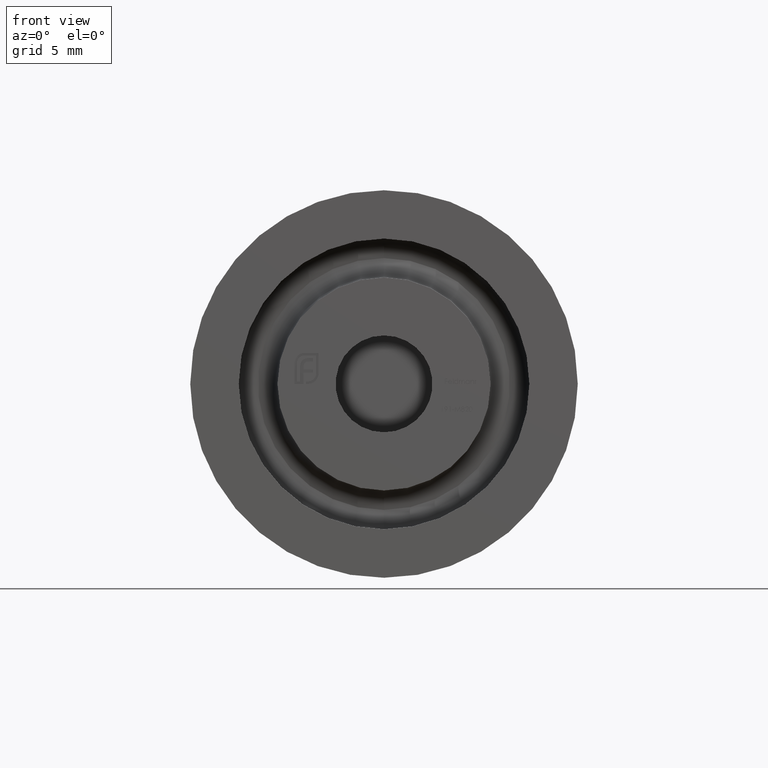
[diagram: clean part render]
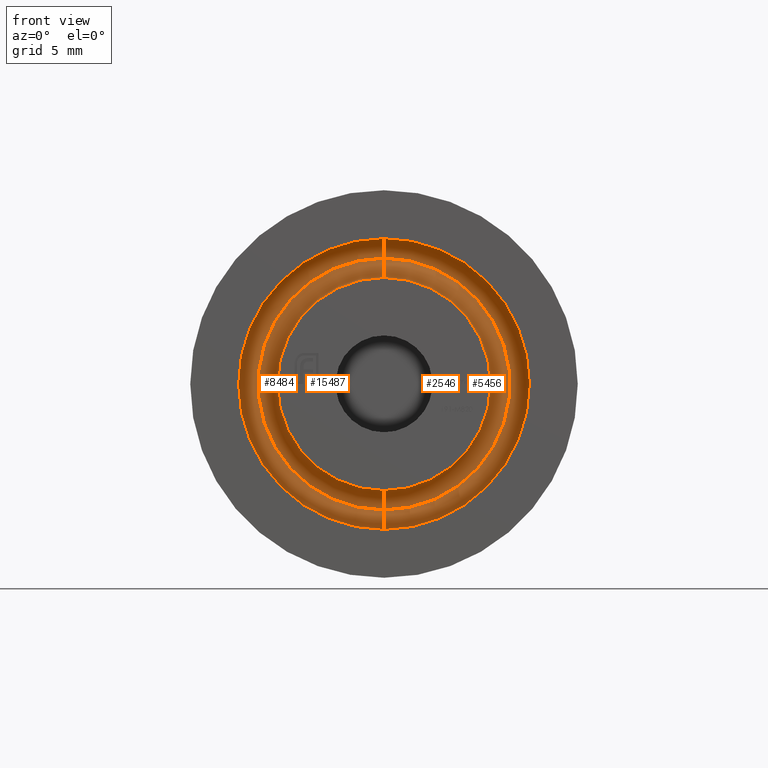
[diagram: same view with one multi-face feature highlighted, each face labeled with its STEP entity id]
A machine part, front view. The highlighted faces form ONE feature: a constant-radius fillet chain: 4 tangent blend faces with common blend radius 1 mm. The faces share edges in the B-rep.
Their STEP definitions:
[1] entity #2546 (Torus):
#225 = CIRCLE ( 'NONE', #734, 6.500000000000000000 ) ;
#734 = AXIS2_PLACEMENT_3D ( 'NONE', #1983, #4494, #3205 ) ;
#1076 = EDGE_CURVE ( 'NONE', #1266, #6040, #6778, .T. ) ;
#1099 = VERTEX_POINT ( 'NONE', #7923 ) ;
#1266 = VERTEX_POINT ( 'NONE', #14489 ) ;
#1440 = EDGE_CURVE ( 'NONE', #10461, #1099, #225, .T. ) ;
#1983 = CARTESIAN_POINT ( 'NONE',  ( 0.000000000000000000, 3.000000000000000000, 0.000000000000000000 ) ) ;
#2076 = CARTESIAN_POINT ( 'NONE',  ( 7.960204194457795477E-16, 2.000000000000001776, 6.500000000000000000 ) ) ;
#2546 = ADVANCED_FACE ( 'NONE', ( #9388 ), #4692, .F. ) ;
#3205 = DIRECTION ( 'NONE',  ( 0.000000000000000000, 0.000000000000000000, -1.000000000000000000 ) ) ;
#3864 = CARTESIAN_POINT ( 'NONE',  ( 0.000000000000000000, 2.000000000000001776, -6.500000000000000000 ) ) ;
#4164 = AXIS2_PLACEMENT_3D ( 'NONE', #8294, #8396, #12038 ) ;
#4243 = AXIS2_PLACEMENT_3D ( 'NONE', #15103, #11434, #8974 ) ;
#4494 = DIRECTION ( 'NONE',  ( -0.000000000000000000, 1.000000000000000000, -0.000000000000000000 ) ) ;
#4692 = TOROIDAL_SURFACE ( 'NONE', #4164, 6.500000000000000000, 1.000000000000000000 ) ;
#5455 = ORIENTED_EDGE ( 'NONE', *, *, #1440, .F. ) ;
#6040 = VERTEX_POINT ( 'NONE', #12468 ) ;
#6251 = CARTESIAN_POINT ( 'NONE',  ( 7.960204194457795477E-16, 3.000000000000000888, 6.500000000000000000 ) ) ;
#6295 = AXIS2_PLACEMENT_3D ( 'NONE', #2076, #11884, #9303 ) ;
#6358 = EDGE_CURVE ( 'NONE', #6040, #10461, #9509, .T. ) ;
#6778 = CIRCLE ( 'NONE', #4243, 5.500000000000000000 ) ;
#7175 = AXIS2_PLACEMENT_3D ( 'NONE', #3864, #9855, #8530 ) ;
#7923 = CARTESIAN_POINT ( 'NONE',  ( 0.000000000000000000, 3.000000000000000888, -6.500000000000000000 ) ) ;
#8294 = CARTESIAN_POINT ( 'NONE',  ( 0.000000000000000000, 2.000000000000001776, 0.000000000000000000 ) ) ;
#8396 = DIRECTION ( 'NONE',  ( 0.000000000000000000, -1.000000000000000000, 0.000000000000000000 ) ) ;
#8530 = DIRECTION ( 'NONE',  ( 0.000000000000000000, 0.000000000000000000, 1.000000000000000000 ) ) ;
#8974 = DIRECTION ( 'NONE',  ( 0.000000000000000000, 0.000000000000000000, -1.000000000000000000 ) ) ;
#9303 = DIRECTION ( 'NONE',  ( -1.224646799147353454E-16, 0.000000000000000000, -1.000000000000000000 ) ) ;
#9388 = FACE_OUTER_BOUND ( 'NONE', #10987, .T. ) ;
#9509 = CIRCLE ( 'NONE', #6295, 1.000000000000000000 ) ;
#9855 = DIRECTION ( 'NONE',  ( -1.000000000000000000, -0.000000000000000000, -0.000000000000000000 ) ) ;
#10461 = VERTEX_POINT ( 'NONE', #6251 ) ;
#10538 = ORIENTED_EDGE ( 'NONE', *, *, #13431, .T. ) ;
#10987 = EDGE_LOOP ( 'NONE', ( #11984, #14138, #10538, #5455 ) ) ;
#11434 = DIRECTION ( 'NONE',  ( 0.000000000000000000, -1.000000000000000000, 0.000000000000000000 ) ) ;
#11884 = DIRECTION ( 'NONE',  ( 1.000000000000000000, 0.000000000000000000, -1.224646799147353207E-16 ) ) ;
#11984 = ORIENTED_EDGE ( 'NONE', *, *, #6358, .F. ) ;
#12038 = DIRECTION ( 'NONE',  ( 0.000000000000000000, 0.000000000000000000, -1.000000000000000000 ) ) ;
#12220 = CIRCLE ( 'NONE', #7175, 1.000000000000000000 ) ;
#12468 = CARTESIAN_POINT ( 'NONE',  ( 0.000000000000000000, 2.000000000000001776, 5.500000000000000000 ) ) ;
#13431 = EDGE_CURVE ( 'NONE', #1266, #1099, #12220, .T. ) ;
#14138 = ORIENTED_EDGE ( 'NONE', *, *, #1076, .F. ) ;
#14489 = CARTESIAN_POINT ( 'NONE',  ( 6.735557395310442023E-16, 2.000000000000001776, -5.500000000000000000 ) ) ;
#15103 = CARTESIAN_POINT ( 'NONE',  ( 0.000000000000000000, 2.000000000000001776, 0.000000000000000000 ) ) ;
[2] entity #15487 (Torus):
#13 = DIRECTION ( 'NONE',  ( 0.000000000000000000, 0.000000000000000000, -1.000000000000000000 ) ) ;
#465 = DIRECTION ( 'NONE',  ( 0.000000000000000000, 0.000000000000000000, -1.000000000000000000 ) ) ;
#1099 = VERTEX_POINT ( 'NONE', #7923 ) ;
#1266 = VERTEX_POINT ( 'NONE', #14489 ) ;
#1694 = AXIS2_PLACEMENT_3D ( 'NONE', #5315, #1703, #8870 ) ;
#1703 = DIRECTION ( 'NONE',  ( 0.000000000000000000, -1.000000000000000000, 0.000000000000000000 ) ) ;
#2076 = CARTESIAN_POINT ( 'NONE',  ( 7.960204194457795477E-16, 2.000000000000001776, 6.500000000000000000 ) ) ;
#2120 = ORIENTED_EDGE ( 'NONE', *, *, #3357, .F. ) ;
#2386 = CARTESIAN_POINT ( 'NONE',  ( 0.000000000000000000, 2.000000000000001776, 0.000000000000000000 ) ) ;
#3014 = ORIENTED_EDGE ( 'NONE', *, *, #13431, .F. ) ;
#3357 = EDGE_CURVE ( 'NONE', #6040, #1266, #3764, .T. ) ;
#3587 = DIRECTION ( 'NONE',  ( 0.000000000000000000, -1.000000000000000000, 0.000000000000000000 ) ) ;
#3764 = CIRCLE ( 'NONE', #11476, 5.500000000000000000 ) ;
#3864 = CARTESIAN_POINT ( 'NONE',  ( 0.000000000000000000, 2.000000000000001776, -6.500000000000000000 ) ) ;
#5315 = CARTESIAN_POINT ( 'NONE',  ( 0.000000000000000000, 2.000000000000001776, 0.000000000000000000 ) ) ;
#5553 = AXIS2_PLACEMENT_3D ( 'NONE', #9984, #7655, #465 ) ;
#5964 = TOROIDAL_SURFACE ( 'NONE', #1694, 6.500000000000000000, 1.000000000000000000 ) ;
#6040 = VERTEX_POINT ( 'NONE', #12468 ) ;
#6251 = CARTESIAN_POINT ( 'NONE',  ( 7.960204194457795477E-16, 3.000000000000000888, 6.500000000000000000 ) ) ;
#6295 = AXIS2_PLACEMENT_3D ( 'NONE', #2076, #11884, #9303 ) ;
#6358 = EDGE_CURVE ( 'NONE', #6040, #10461, #9509, .T. ) ;
#6724 = ORIENTED_EDGE ( 'NONE', *, *, #9340, .F. ) ;
#7070 = ORIENTED_EDGE ( 'NONE', *, *, #6358, .T. ) ;
#7175 = AXIS2_PLACEMENT_3D ( 'NONE', #3864, #9855, #8530 ) ;
#7655 = DIRECTION ( 'NONE',  ( -0.000000000000000000, 1.000000000000000000, -0.000000000000000000 ) ) ;
#7923 = CARTESIAN_POINT ( 'NONE',  ( 0.000000000000000000, 3.000000000000000888, -6.500000000000000000 ) ) ;
#7962 = CIRCLE ( 'NONE', #5553, 6.500000000000000000 ) ;
#8530 = DIRECTION ( 'NONE',  ( 0.000000000000000000, 0.000000000000000000, 1.000000000000000000 ) ) ;
#8870 = DIRECTION ( 'NONE',  ( 0.000000000000000000, 0.000000000000000000, -1.000000000000000000 ) ) ;
#9303 = DIRECTION ( 'NONE',  ( -1.224646799147353454E-16, 0.000000000000000000, -1.000000000000000000 ) ) ;
#9340 = EDGE_CURVE ( 'NONE', #1099, #10461, #7962, .T. ) ;
#9509 = CIRCLE ( 'NONE', #6295, 1.000000000000000000 ) ;
#9855 = DIRECTION ( 'NONE',  ( -1.000000000000000000, -0.000000000000000000, -0.000000000000000000 ) ) ;
#9984 = CARTESIAN_POINT ( 'NONE',  ( 0.000000000000000000, 3.000000000000000000, 0.000000000000000000 ) ) ;
#10279 = FACE_OUTER_BOUND ( 'NONE', #10320, .T. ) ;
#10320 = EDGE_LOOP ( 'NONE', ( #2120, #7070, #6724, #3014 ) ) ;
#10461 = VERTEX_POINT ( 'NONE', #6251 ) ;
#11476 = AXIS2_PLACEMENT_3D ( 'NONE', #2386, #3587, #13 ) ;
#11884 = DIRECTION ( 'NONE',  ( 1.000000000000000000, 0.000000000000000000, -1.224646799147353207E-16 ) ) ;
#12220 = CIRCLE ( 'NONE', #7175, 1.000000000000000000 ) ;
#12468 = CARTESIAN_POINT ( 'NONE',  ( 0.000000000000000000, 2.000000000000001776, 5.500000000000000000 ) ) ;
#13431 = EDGE_CURVE ( 'NONE', #1266, #1099, #12220, .T. ) ;
#14489 = CARTESIAN_POINT ( 'NONE',  ( 6.735557395310442023E-16, 2.000000000000001776, -5.500000000000000000 ) ) ;
#15487 = ADVANCED_FACE ( 'NONE', ( #10279 ), #5964, .F. ) ;
[3] entity #8484 (Torus):
#379 = DIRECTION ( 'NONE',  ( 0.000000000000000000, 0.000000000000000000, -1.000000000000000000 ) ) ;
#435 = DIRECTION ( 'NONE',  ( 1.000000000000000000, 0.000000000000000000, -1.224646799147353207E-16 ) ) ;
#465 = DIRECTION ( 'NONE',  ( 0.000000000000000000, 0.000000000000000000, -1.000000000000000000 ) ) ;
#876 = VERTEX_POINT ( 'NONE', #10114 ) ;
#1027 = TOROIDAL_SURFACE ( 'NONE', #5022, 6.500000000000000000, 1.000000000000000000 ) ;
#1047 = ORIENTED_EDGE ( 'NONE', *, *, #13809, .F. ) ;
#1067 = DIRECTION ( 'NONE',  ( -1.000000000000000000, -0.000000000000000000, -0.000000000000000000 ) ) ;
#1087 = ORIENTED_EDGE ( 'NONE', *, *, #9340, .T. ) ;
#1099 = VERTEX_POINT ( 'NONE', #7923 ) ;
#1276 = CARTESIAN_POINT ( 'NONE',  ( 0.000000000000000000, 2.000000000000000000, 0.000000000000000000 ) ) ;
#2327 = ORIENTED_EDGE ( 'NONE', *, *, #10984, .F. ) ;
#2543 = DIRECTION ( 'NONE',  ( 0.000000000000000000, -1.000000000000000000, 0.000000000000000000 ) ) ;
#3297 = FACE_OUTER_BOUND ( 'NONE', #7491, .T. ) ;
#4047 = DIRECTION ( 'NONE',  ( -0.000000000000000000, 1.000000000000000000, -0.000000000000000000 ) ) ;
#5022 = AXIS2_PLACEMENT_3D ( 'NONE', #1276, #2543, #10918 ) ;
#5212 = CARTESIAN_POINT ( 'NONE',  ( 0.000000000000000000, 2.000000000000000000, 0.000000000000000000 ) ) ;
#5423 = CARTESIAN_POINT ( 'NONE',  ( 7.960204194457795477E-16, 2.000000000000000000, 6.500000000000000000 ) ) ;
#5553 = AXIS2_PLACEMENT_3D ( 'NONE', #9984, #7655, #465 ) ;
#6251 = CARTESIAN_POINT ( 'NONE',  ( 7.960204194457795477E-16, 3.000000000000000888, 6.500000000000000000 ) ) ;
#6920 = CIRCLE ( 'NONE', #13629, 1.000000000000000000 ) ;
#6965 = CIRCLE ( 'NONE', #14621, 7.500000000000000000 ) ;
#7402 = EDGE_CURVE ( 'NONE', #10461, #876, #7624, .T. ) ;
#7491 = EDGE_LOOP ( 'NONE', ( #1087, #7749, #2327, #1047 ) ) ;
#7624 = CIRCLE ( 'NONE', #9934, 1.000000000000000000 ) ;
#7655 = DIRECTION ( 'NONE',  ( -0.000000000000000000, 1.000000000000000000, -0.000000000000000000 ) ) ;
#7749 = ORIENTED_EDGE ( 'NONE', *, *, #7402, .T. ) ;
#7923 = CARTESIAN_POINT ( 'NONE',  ( 0.000000000000000000, 3.000000000000000888, -6.500000000000000000 ) ) ;
#7962 = CIRCLE ( 'NONE', #5553, 6.500000000000000000 ) ;
#8445 = VERTEX_POINT ( 'NONE', #13195 ) ;
#8484 = ADVANCED_FACE ( 'NONE', ( #3297 ), #1027, .F. ) ;
#9290 = DIRECTION ( 'NONE',  ( 0.000000000000000000, 0.000000000000000000, 1.000000000000000000 ) ) ;
#9340 = EDGE_CURVE ( 'NONE', #1099, #10461, #7962, .T. ) ;
#9934 = AXIS2_PLACEMENT_3D ( 'NONE', #5423, #435, #14920 ) ;
#9984 = CARTESIAN_POINT ( 'NONE',  ( 0.000000000000000000, 3.000000000000000000, 0.000000000000000000 ) ) ;
#10114 = CARTESIAN_POINT ( 'NONE',  ( 9.184850993605147944E-16, 2.000000000000000000, 7.500000000000000000 ) ) ;
#10461 = VERTEX_POINT ( 'NONE', #6251 ) ;
#10918 = DIRECTION ( 'NONE',  ( 0.000000000000000000, 0.000000000000000000, -1.000000000000000000 ) ) ;
#10984 = EDGE_CURVE ( 'NONE', #8445, #876, #6965, .T. ) ;
#13195 = CARTESIAN_POINT ( 'NONE',  ( 0.000000000000000000, 2.000000000000000000, -7.500000000000000000 ) ) ;
#13629 = AXIS2_PLACEMENT_3D ( 'NONE', #14221, #1067, #9290 ) ;
#13809 = EDGE_CURVE ( 'NONE', #1099, #8445, #6920, .T. ) ;
#14221 = CARTESIAN_POINT ( 'NONE',  ( 0.000000000000000000, 2.000000000000000000, -6.500000000000000000 ) ) ;
#14621 = AXIS2_PLACEMENT_3D ( 'NONE', #5212, #4047, #379 ) ;
#14920 = DIRECTION ( 'NONE',  ( -1.224646799147353454E-16, 0.000000000000000000, -1.000000000000000000 ) ) ;
[4] entity #5456 (Torus):
#8 = DIRECTION ( 'NONE',  ( 0.000000000000000000, 0.000000000000000000, -1.000000000000000000 ) ) ;
#225 = CIRCLE ( 'NONE', #734, 6.500000000000000000 ) ;
#435 = DIRECTION ( 'NONE',  ( 1.000000000000000000, 0.000000000000000000, -1.224646799147353207E-16 ) ) ;
#734 = AXIS2_PLACEMENT_3D ( 'NONE', #1983, #4494, #3205 ) ;
#876 = VERTEX_POINT ( 'NONE', #10114 ) ;
#1067 = DIRECTION ( 'NONE',  ( -1.000000000000000000, -0.000000000000000000, -0.000000000000000000 ) ) ;
#1099 = VERTEX_POINT ( 'NONE', #7923 ) ;
#1440 = EDGE_CURVE ( 'NONE', #10461, #1099, #225, .T. ) ;
#1983 = CARTESIAN_POINT ( 'NONE',  ( 0.000000000000000000, 3.000000000000000000, 0.000000000000000000 ) ) ;
#2298 = ORIENTED_EDGE ( 'NONE', *, *, #7402, .F. ) ;
#2824 = EDGE_LOOP ( 'NONE', ( #2298, #2988, #5073, #3162 ) ) ;
#2988 = ORIENTED_EDGE ( 'NONE', *, *, #1440, .T. ) ;
#3162 = ORIENTED_EDGE ( 'NONE', *, *, #8848, .F. ) ;
#3205 = DIRECTION ( 'NONE',  ( 0.000000000000000000, 0.000000000000000000, -1.000000000000000000 ) ) ;
#4494 = DIRECTION ( 'NONE',  ( -0.000000000000000000, 1.000000000000000000, -0.000000000000000000 ) ) ;
#4531 = DIRECTION ( 'NONE',  ( 0.000000000000000000, 0.000000000000000000, -1.000000000000000000 ) ) ;
#4570 = DIRECTION ( 'NONE',  ( -0.000000000000000000, 1.000000000000000000, -0.000000000000000000 ) ) ;
#5073 = ORIENTED_EDGE ( 'NONE', *, *, #13809, .T. ) ;
#5423 = CARTESIAN_POINT ( 'NONE',  ( 7.960204194457795477E-16, 2.000000000000000000, 6.500000000000000000 ) ) ;
#5456 = ADVANCED_FACE ( 'NONE', ( #5957 ), #10445, .F. ) ;
#5957 = FACE_OUTER_BOUND ( 'NONE', #2824, .T. ) ;
#6251 = CARTESIAN_POINT ( 'NONE',  ( 7.960204194457795477E-16, 3.000000000000000888, 6.500000000000000000 ) ) ;
#6775 = AXIS2_PLACEMENT_3D ( 'NONE', #13977, #15291, #4531 ) ;
#6920 = CIRCLE ( 'NONE', #13629, 1.000000000000000000 ) ;
#7402 = EDGE_CURVE ( 'NONE', #10461, #876, #7624, .T. ) ;
#7624 = CIRCLE ( 'NONE', #9934, 1.000000000000000000 ) ;
#7923 = CARTESIAN_POINT ( 'NONE',  ( 0.000000000000000000, 3.000000000000000888, -6.500000000000000000 ) ) ;
#8445 = VERTEX_POINT ( 'NONE', #13195 ) ;
#8537 = CIRCLE ( 'NONE', #8738, 7.500000000000000000 ) ;
#8738 = AXIS2_PLACEMENT_3D ( 'NONE', #14387, #4570, #8 ) ;
#8848 = EDGE_CURVE ( 'NONE', #876, #8445, #8537, .T. ) ;
#9290 = DIRECTION ( 'NONE',  ( 0.000000000000000000, 0.000000000000000000, 1.000000000000000000 ) ) ;
#9934 = AXIS2_PLACEMENT_3D ( 'NONE', #5423, #435, #14920 ) ;
#10114 = CARTESIAN_POINT ( 'NONE',  ( 9.184850993605147944E-16, 2.000000000000000000, 7.500000000000000000 ) ) ;
#10445 = TOROIDAL_SURFACE ( 'NONE', #6775, 6.500000000000000000, 1.000000000000000000 ) ;
#10461 = VERTEX_POINT ( 'NONE', #6251 ) ;
#13195 = CARTESIAN_POINT ( 'NONE',  ( 0.000000000000000000, 2.000000000000000000, -7.500000000000000000 ) ) ;
#13629 = AXIS2_PLACEMENT_3D ( 'NONE', #14221, #1067, #9290 ) ;
#13809 = EDGE_CURVE ( 'NONE', #1099, #8445, #6920, .T. ) ;
#13977 = CARTESIAN_POINT ( 'NONE',  ( 0.000000000000000000, 2.000000000000000000, 0.000000000000000000 ) ) ;
#14221 = CARTESIAN_POINT ( 'NONE',  ( 0.000000000000000000, 2.000000000000000000, -6.500000000000000000 ) ) ;
#14387 = CARTESIAN_POINT ( 'NONE',  ( 0.000000000000000000, 2.000000000000000000, 0.000000000000000000 ) ) ;
#14920 = DIRECTION ( 'NONE',  ( -1.224646799147353454E-16, 0.000000000000000000, -1.000000000000000000 ) ) ;
#15291 = DIRECTION ( 'NONE',  ( 0.000000000000000000, -1.000000000000000000, 0.000000000000000000 ) ) ;